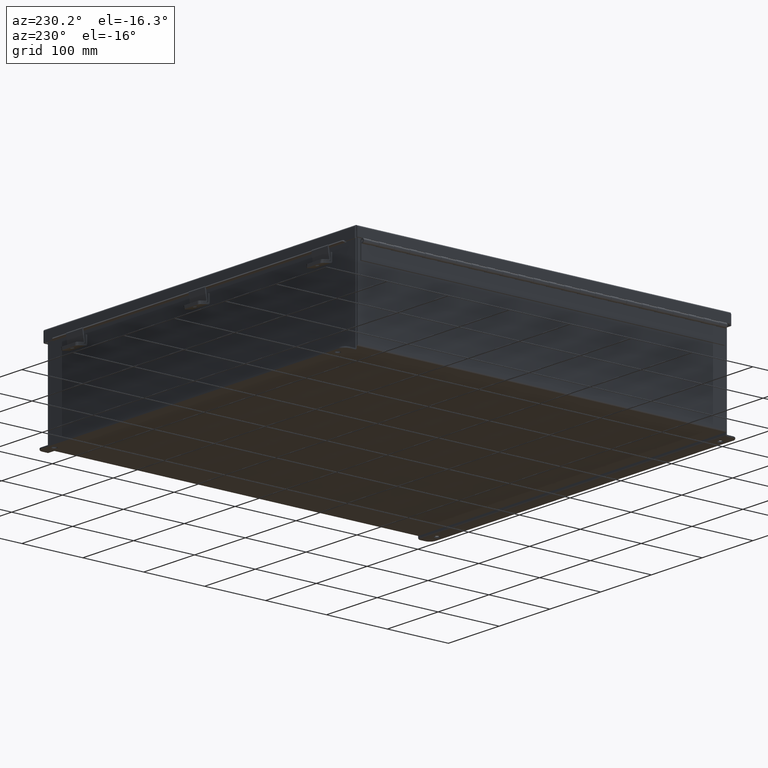
[diagram: clean part render]
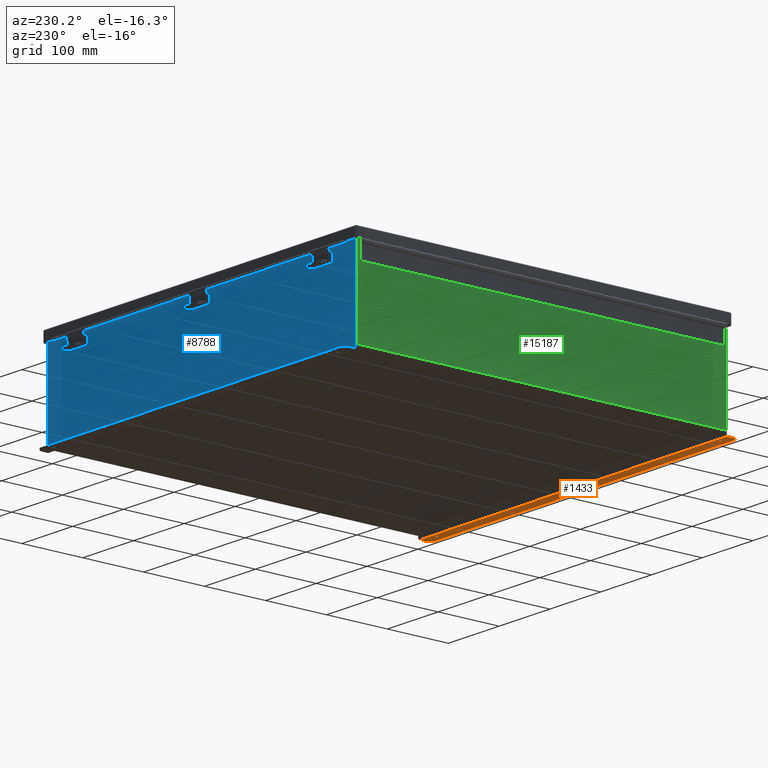
[diagram: same view with three faces highlighted in distinct colors, each labeled with its STEP entity id]
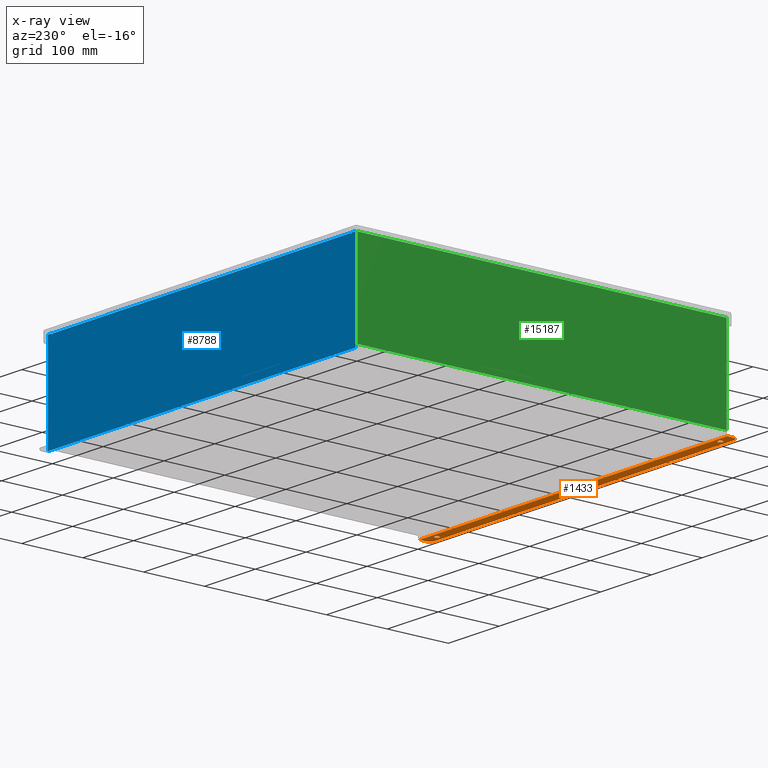
[diagram: x-ray of the same camera — body ghosted, the three highlighted faces saturated]
A machine part, auxiliary view with three faces highlighted in distinct colors.
The next image is the same camera in x-ray (body ghosted, the three faces saturated) — at least one of them is partly hidden behind the body in this view.
Their STEP definitions:

[orange] entity #1433 — the highlighted planar face has unit normal (0, -0, 1).
#329 = CARTESIAN_POINT ( 'NONE',  ( 11.92530000000000500, -1.092739197465705300E-014, -3.187000000000000700 ) ) ;
#614 = DIRECTION ( 'NONE',  ( 0.0000000000000000000, 1.000000000000000000, -3.502369222646490200E-015 ) ) ;
#694 = DIRECTION ( 'NONE',  ( 0.0000000000000000000, -3.362274453740631800E-015, -1.000000000000000000 ) ) ;
#876 = CARTESIAN_POINT ( 'NONE',  ( 10.98780000000002100, 0.3628000000000008400, -3.186999999999997600 ) ) ;
#1411 = PLANE ( 'NONE',  #11320 ) ;
#1433 = ADVANCED_FACE ( 'NONE', ( #18070, #17708, #18595 ), #1411, .F. ) ;
#1495 = DIRECTION ( 'NONE',  ( 0.0000000000000000000, 1.000000000000000000, -3.502369222646490200E-015 ) ) ;
#1524 = DIRECTION ( 'NONE',  ( 0.0000000000000000000, -3.362274453740631800E-015, -1.000000000000000000 ) ) ;
#1538 = CARTESIAN_POINT ( 'NONE',  ( -10.98779999999997700, 0.3627999999999986800, -3.187000000000001600 ) ) ;
#1717 = CARTESIAN_POINT ( 'NONE',  ( -11.55029999999997500, 0.7377999999999835800, -3.187000000000003400 ) ) ;
#2338 = ORIENTED_EDGE ( 'NONE', *, *, #23091, .T. ) ;
#2433 = VERTEX_POINT ( 'NONE', #18230 ) ;
#3713 = ORIENTED_EDGE ( 'NONE', *, *, #18006, .F. ) ;
#3762 = CIRCLE ( 'NONE', #16428, 0.3750000000000000600 ) ;
#4176 = CARTESIAN_POINT ( 'NONE',  ( 0.0000000000000000000, -1.092739197465705300E-014, -3.187000000000000700 ) ) ;
#4671 = VECTOR ( 'NONE', #7156, 39.37007874015748100 ) ;
#4741 = LINE ( 'NONE', #7561, #4671 ) ;
#5913 = CARTESIAN_POINT ( 'NONE',  ( -10.98779999999999300, 0.2067999999999986000, -3.187000000000001200 ) ) ;
#6641 = DIRECTION ( 'NONE',  ( 0.0000000000000000000, 1.000000000000000000, -3.502369222646490200E-015 ) ) ;
#6721 = DIRECTION ( 'NONE',  ( 0.0000000000000000000, -3.362274453740631800E-015, -1.000000000000000000 ) ) ;
#6855 = CARTESIAN_POINT ( 'NONE',  ( -10.98779999999997700, 0.3627999999999986800, -3.187000000000001600 ) ) ;
#6963 = CIRCLE ( 'NONE', #19818, 0.1560000000000000600 ) ;
#7019 = CARTESIAN_POINT ( 'NONE',  ( -11.92529999999998000, 0.3627999999999964600, -3.187000000000001600 ) ) ;
#7156 = DIRECTION ( 'NONE',  ( 1.000000000000000000, 2.290800226127906500E-017, -0.0000000000000000000 ) ) ;
#7295 = DIRECTION ( 'NONE',  ( 0.0000000000000000000, 3.702694488566362300E-015, 1.000000000000000000 ) ) ;
#7561 = CARTESIAN_POINT ( 'NONE',  ( 11.92530000000000500, 0.01300000000000229300, -3.187000000000000700 ) ) ;
#7618 = ORIENTED_EDGE ( 'NONE', *, *, #18383, .T. ) ;
#7990 = VECTOR ( 'NONE', #23915, 39.37007874015748100 ) ;
#8241 = LINE ( 'NONE', #23781, #7990 ) ;
#8298 = CIRCLE ( 'NONE', #12769, 0.1560000000000000600 ) ;
#8580 = CIRCLE ( 'NONE', #17571, 0.3750000000000000600 ) ;
#8935 = EDGE_CURVE ( 'NONE', #15753, #2433, #8580, .T. ) ;
#9499 = EDGE_CURVE ( 'NONE', #23621, #10896, #8298, .T. ) ;
#9504 = VERTEX_POINT ( 'NONE', #7019 ) ;
#10164 = CARTESIAN_POINT ( 'NONE',  ( 10.98780000000000500, 0.2068000000000007900, -3.186999999999996700 ) ) ;
#10241 = VERTEX_POINT ( 'NONE', #11984 ) ;
#10562 = VERTEX_POINT ( 'NONE', #1717 ) ;
#10896 = VERTEX_POINT ( 'NONE', #14420 ) ;
#11039 = EDGE_CURVE ( 'NONE', #11975, #10241, #4741, .T. ) ;
#11320 = AXIS2_PLACEMENT_3D ( 'NONE', #4176, #7295, #18256 ) ;
#11568 = CIRCLE ( 'NONE', #21052, 0.1560000000000000600 ) ;
#11786 = DIRECTION ( 'NONE',  ( 0.0000000000000000000, -1.000000000000000000, 4.370956789862820400E-015 ) ) ;
#11819 = DIRECTION ( 'NONE',  ( -0.0000000000000000000, -3.702694488566362300E-015, -1.000000000000000000 ) ) ;
#11838 = CARTESIAN_POINT ( 'NONE',  ( -11.55029999999997500, 0.3627999999999964600, -3.186999999999997600 ) ) ;
#11975 = VERTEX_POINT ( 'NONE', #23543 ) ;
#11984 = CARTESIAN_POINT ( 'NONE',  ( 11.92530000000000500, 0.01300000000000229300, -3.187000000000000700 ) ) ;
#12663 = ORIENTED_EDGE ( 'NONE', *, *, #16367, .T. ) ;
#12671 = AXIS2_PLACEMENT_3D ( 'NONE', #876, #694, #614 ) ;
#12769 = AXIS2_PLACEMENT_3D ( 'NONE', #6855, #6721, #6641 ) ;
#13143 = EDGE_CURVE ( 'NONE', #15511, #14609, #16650, .T. ) ;
#13783 = EDGE_LOOP ( 'NONE', ( #3713, #19019 ) ) ;
#14379 = ORIENTED_EDGE ( 'NONE', *, *, #22490, .F. ) ;
#14420 = CARTESIAN_POINT ( 'NONE',  ( -10.98779999999997700, 0.5187999999999987100, -3.187000000000002500 ) ) ;
#14609 = VERTEX_POINT ( 'NONE', #22439 ) ;
#14842 = ORIENTED_EDGE ( 'NONE', *, *, #11039, .F. ) ;
#15511 = VERTEX_POINT ( 'NONE', #10164 ) ;
#15562 = EDGE_LOOP ( 'NONE', ( #14379, #18572 ) ) ;
#15654 = CARTESIAN_POINT ( 'NONE',  ( 11.55030000000002300, 0.7378000000000011200, -3.186999999999998900 ) ) ;
#15753 = VERTEX_POINT ( 'NONE', #15654 ) ;
#16367 = EDGE_CURVE ( 'NONE', #10562, #15753, #23175, .T. ) ;
#16428 = AXIS2_PLACEMENT_3D ( 'NONE', #11838, #11819, #11786 ) ;
#16650 = CIRCLE ( 'NONE', #12671, 0.1560000000000000600 ) ;
#17571 = AXIS2_PLACEMENT_3D ( 'NONE', #24035, #23947, #23918 ) ;
#17708 = FACE_BOUND ( 'NONE', #15562, .T. ) ;
#17758 = DIRECTION ( 'NONE',  ( 0.0000000000000000000, 1.000000000000000000, -3.502369222646490200E-015 ) ) ;
#17777 = DIRECTION ( 'NONE',  ( 0.0000000000000000000, -3.362274453740631800E-015, -1.000000000000000000 ) ) ;
#17830 = CARTESIAN_POINT ( 'NONE',  ( 10.98780000000002100, 0.3628000000000008400, -3.186999999999997600 ) ) ;
#18006 = EDGE_CURVE ( 'NONE', #10896, #23621, #11568, .T. ) ;
#18070 = FACE_BOUND ( 'NONE', #13783, .T. ) ;
#18230 = CARTESIAN_POINT ( 'NONE',  ( 11.92530000000002300, 0.3628000000000008400, -3.186999999999997600 ) ) ;
#18256 = DIRECTION ( 'NONE',  ( -4.919856193148104900E-031, -1.000000000000000000, 3.702694488566362300E-015 ) ) ;
#18383 = EDGE_CURVE ( 'NONE', #11975, #9504, #8241, .T. ) ;
#18572 = ORIENTED_EDGE ( 'NONE', *, *, #13143, .F. ) ;
#18595 = FACE_OUTER_BOUND ( 'NONE', #21959, .T. ) ;
#19019 = ORIENTED_EDGE ( 'NONE', *, *, #9499, .F. ) ;
#19818 = AXIS2_PLACEMENT_3D ( 'NONE', #17830, #17777, #17758 ) ;
#20051 = ORIENTED_EDGE ( 'NONE', *, *, #24068, .T. ) ;
#20378 = DIRECTION ( 'NONE',  ( 1.000000000000000000, 4.910036603141682400E-031, 0.0000000000000000000 ) ) ;
#21052 = AXIS2_PLACEMENT_3D ( 'NONE', #1538, #1524, #1495 ) ;
#21705 = ORIENTED_EDGE ( 'NONE', *, *, #8935, .T. ) ;
#21959 = EDGE_LOOP ( 'NONE', ( #7618, #2338, #12663, #21705, #20051, #14842 ) ) ;
#22439 = CARTESIAN_POINT ( 'NONE',  ( 10.98780000000002100, 0.5188000000000009300, -3.186999999999998100 ) ) ;
#22490 = EDGE_CURVE ( 'NONE', #14609, #15511, #6963, .T. ) ;
#22881 = VECTOR ( 'NONE', #24717, 39.37007874015748100 ) ;
#22968 = LINE ( 'NONE', #329, #22881 ) ;
#23091 = EDGE_CURVE ( 'NONE', #9504, #10562, #3762, .T. ) ;
#23114 = CARTESIAN_POINT ( 'NONE',  ( -2.035385365534024800E-024, 0.7377999999999989000, -3.186999999999998900 ) ) ;
#23175 = LINE ( 'NONE', #23114, #23599 ) ;
#23543 = CARTESIAN_POINT ( 'NONE',  ( -11.92529999999999500, 0.01299999999998262300, -3.186999999999996300 ) ) ;
#23599 = VECTOR ( 'NONE', #20378, 39.37007874015748100 ) ;
#23621 = VERTEX_POINT ( 'NONE', #5913 ) ;
#23781 = CARTESIAN_POINT ( 'NONE',  ( -11.92529999999999800, -2.841121913410833900E-014, -3.186999999999996300 ) ) ;
#23915 = DIRECTION ( 'NONE',  ( 4.919856193148104900E-031, 1.000000000000000000, -3.702694488566362300E-015 ) ) ;
#23918 = DIRECTION ( 'NONE',  ( 0.0000000000000000000, -1.000000000000000000, 4.370956789862820400E-015 ) ) ;
#23947 = DIRECTION ( 'NONE',  ( -0.0000000000000000000, -3.702694488566362300E-015, -1.000000000000000000 ) ) ;
#24035 = CARTESIAN_POINT ( 'NONE',  ( 11.55030000000002300, 0.3628000000000008400, -3.187000000000001600 ) ) ;
#24068 = EDGE_CURVE ( 'NONE', #2433, #10241, #22968, .T. ) ;
#24717 = DIRECTION ( 'NONE',  ( -4.919856193148104900E-031, -1.000000000000000000, 3.702694488566362300E-015 ) ) ;

[blue] entity #8788 — the highlighted planar face has unit normal (0, -1, 0).
#74 = VECTOR ( 'NONE', #23560, 39.37007874015748100 ) ;
#124 = EDGE_CURVE ( 'NONE', #20801, #18044, #18876, .T. ) ;
#277 = VERTEX_POINT ( 'NONE', #2313 ) ;
#632 = ORIENTED_EDGE ( 'NONE', *, *, #13697, .F. ) ;
#638 = DIRECTION ( 'NONE',  ( 0.0000000000000000000, 0.0000000000000000000, -1.000000000000000000 ) ) ;
#654 = CARTESIAN_POINT ( 'NONE',  ( 11.58230000000000400, 0.0000000000000000000, 2.912299999999998300 ) ) ;
#707 = ORIENTED_EDGE ( 'NONE', *, *, #20255, .T. ) ;
#751 = CARTESIAN_POINT ( 'NONE',  ( -11.61965000000000200, 0.0000000000000000000, 0.0000000000000000000 ) ) ;
#969 = VECTOR ( 'NONE', #7866, 39.37007874015748100 ) ;
#1040 = LINE ( 'NONE', #7900, #969 ) ;
#1263 = AXIS2_PLACEMENT_3D ( 'NONE', #1752, #14316, #13060 ) ;
#1326 = LINE ( 'NONE', #24457, #74 ) ;
#1389 = DIRECTION ( 'NONE',  ( -4.340572780399816900E-014, 0.0000000000000000000, -1.000000000000000000 ) ) ;
#1395 = DIRECTION ( 'NONE',  ( -0.0000000000000000000, 1.000000000000000000, -0.0000000000000000000 ) ) ;
#1750 = EDGE_CURVE ( 'NONE', #277, #18231, #10535, .T. ) ;
#1752 = CARTESIAN_POINT ( 'NONE',  ( -11.60097500000000200, 0.0000000000000000000, 2.874949999999997000 ) ) ;
#1770 = VERTEX_POINT ( 'NONE', #9350 ) ;
#1841 = ORIENTED_EDGE ( 'NONE', *, *, #10644, .F. ) ;
#2313 = CARTESIAN_POINT ( 'NONE',  ( -11.58230000000000400, 0.0000000000000000000, 2.874949999999997000 ) ) ;
#2477 = CARTESIAN_POINT ( 'NONE',  ( 11.61965000000000200, 0.0000000000000000000, 2.925300000000000500 ) ) ;
#3434 = ORIENTED_EDGE ( 'NONE', *, *, #11358, .F. ) ;
#3674 = ORIENTED_EDGE ( 'NONE', *, *, #21674, .F. ) ;
#3754 = VERTEX_POINT ( 'NONE', #12618 ) ;
#3823 = EDGE_CURVE ( 'NONE', #8797, #5448, #17743, .T. ) ;
#4223 = CARTESIAN_POINT ( 'NONE',  ( -11.58230000000000400, 4.370956789862821100E-015, 2.912299999999998300 ) ) ;
#4879 = CARTESIAN_POINT ( 'NONE',  ( 11.92530000000000000, 0.0000000000000000000, 2.925300000000000500 ) ) ;
#5174 = EDGE_CURVE ( 'NONE', #3754, #19330, #8409, .T. ) ;
#5423 = DIRECTION ( 'NONE',  ( 0.0000000000000000000, 0.0000000000000000000, -1.000000000000000000 ) ) ;
#5448 = VERTEX_POINT ( 'NONE', #8015 ) ;
#6067 = CARTESIAN_POINT ( 'NONE',  ( 11.61965000000000200, 0.0000000000000000000, 2.874949999999997000 ) ) ;
#6229 = CARTESIAN_POINT ( 'NONE',  ( -11.61965000000000200, 0.0000000000000000000, 2.925300000000000500 ) ) ;
#6384 = DIRECTION ( 'NONE',  ( 0.0000000000000000000, 0.0000000000000000000, 1.000000000000000000 ) ) ;
#6459 = CARTESIAN_POINT ( 'NONE',  ( 11.58230000000000400, 0.0000000000000000000, 0.0000000000000000000 ) ) ;
#6515 = DIRECTION ( 'NONE',  ( 0.0000000000000000000, -0.0000000000000000000, -1.000000000000000000 ) ) ;
#6551 = DIRECTION ( 'NONE',  ( 0.0000000000000000000, -1.000000000000000000, 0.0000000000000000000 ) ) ;
#6570 = ORIENTED_EDGE ( 'NONE', *, *, #5174, .T. ) ;
#6799 = CARTESIAN_POINT ( 'NONE',  ( 0.0000000000000000000, 0.0000000000000000000, 0.0000000000000000000 ) ) ;
#6919 = CARTESIAN_POINT ( 'NONE',  ( 11.61964999999987700, 0.0000000000000000000, -5.042991396304229400E-013 ) ) ;
#6972 = VERTEX_POINT ( 'NONE', #20038 ) ;
#7049 = EDGE_CURVE ( 'NONE', #6972, #12324, #21804, .T. ) ;
#7639 = AXIS2_PLACEMENT_3D ( 'NONE', #21460, #1395, #5423 ) ;
#7654 = PLANE ( 'NONE',  #11131 ) ;
#7855 = VECTOR ( 'NONE', #638, 39.37007874015748100 ) ;
#7866 = DIRECTION ( 'NONE',  ( 1.000000000000000000, 0.0000000000000000000, 0.0000000000000000000 ) ) ;
#7900 = CARTESIAN_POINT ( 'NONE',  ( -11.92530000000000000, 0.0000000000000000000, 2.925300000000000500 ) ) ;
#8015 = CARTESIAN_POINT ( 'NONE',  ( 11.58230000000000400, 0.0000000000000000000, 2.874949999999997000 ) ) ;
#8369 = DIRECTION ( 'NONE',  ( 1.000000000000000000, 0.0000000000000000000, 0.0000000000000000000 ) ) ;
#8409 = LINE ( 'NONE', #4879, #7855 ) ;
#8788 = ADVANCED_FACE ( 'NONE', ( #19047 ), #7654, .F. ) ;
#8797 = VERTEX_POINT ( 'NONE', #6067 ) ;
#9350 = CARTESIAN_POINT ( 'NONE',  ( -11.92529999999999800, 0.0000000000000000000, -3.099299999999999900 ) ) ;
#9433 = ORIENTED_EDGE ( 'NONE', *, *, #23444, .T. ) ;
#9725 = ORIENTED_EDGE ( 'NONE', *, *, #1750, .F. ) ;
#10535 = CIRCLE ( 'NONE', #1263, 0.01867499999999949400 ) ;
#10644 = EDGE_CURVE ( 'NONE', #13140, #8797, #11060, .T. ) ;
#10736 = VECTOR ( 'NONE', #1389, 39.37007874015748100 ) ;
#11060 = LINE ( 'NONE', #6919, #10736 ) ;
#11131 = AXIS2_PLACEMENT_3D ( 'NONE', #6799, #6551, #6515 ) ;
#11233 = CARTESIAN_POINT ( 'NONE',  ( -11.61965000000000200, 0.0000000000000000000, 2.874949999999997000 ) ) ;
#11358 = EDGE_CURVE ( 'NONE', #20801, #277, #1326, .T. ) ;
#11380 = CARTESIAN_POINT ( 'NONE',  ( -11.92530000000000000, 0.0000000000000000000, -3.099299999999999900 ) ) ;
#11463 = DIRECTION ( 'NONE',  ( 1.000000000000000000, -0.0000000000000000000, -0.0000000000000000000 ) ) ;
#11514 = LINE ( 'NONE', #751, #11535 ) ;
#11535 = VECTOR ( 'NONE', #24929, 39.37007874015748100 ) ;
#12324 = VERTEX_POINT ( 'NONE', #6229 ) ;
#12618 = CARTESIAN_POINT ( 'NONE',  ( 11.92530000000000000, 0.0000000000000000000, 2.925300000000000500 ) ) ;
#13060 = DIRECTION ( 'NONE',  ( 0.0000000000000000000, 0.0000000000000000000, -1.000000000000000000 ) ) ;
#13140 = VERTEX_POINT ( 'NONE', #2477 ) ;
#13165 = CARTESIAN_POINT ( 'NONE',  ( -11.58230000000000400, 4.370956789862821100E-015, 2.912299999999998300 ) ) ;
#13522 = ORIENTED_EDGE ( 'NONE', *, *, #16488, .F. ) ;
#13538 = VECTOR ( 'NONE', #6384, 39.37007874015748100 ) ;
#13621 = CARTESIAN_POINT ( 'NONE',  ( -11.92530000000000000, 0.0000000000000000000, 2.925300000000000500 ) ) ;
#13697 = EDGE_CURVE ( 'NONE', #5448, #18044, #13721, .T. ) ;
#13721 = LINE ( 'NONE', #6459, #13538 ) ;
#14316 = DIRECTION ( 'NONE',  ( -0.0000000000000000000, 1.000000000000000000, -0.0000000000000000000 ) ) ;
#14495 = DIRECTION ( 'NONE',  ( -0.0000000000000000000, -0.0000000000000000000, 1.000000000000000000 ) ) ;
#15184 = DIRECTION ( 'NONE',  ( 1.000000000000000000, 0.0000000000000000000, 0.0000000000000000000 ) ) ;
#16488 = EDGE_CURVE ( 'NONE', #1770, #19330, #22366, .T. ) ;
#16574 = ORIENTED_EDGE ( 'NONE', *, *, #124, .T. ) ;
#17743 = CIRCLE ( 'NONE', #7639, 0.01867499999999949400 ) ;
#18044 = VERTEX_POINT ( 'NONE', #654 ) ;
#18231 = VERTEX_POINT ( 'NONE', #11233 ) ;
#18277 = VECTOR ( 'NONE', #8369, 39.37007874015748100 ) ;
#18876 = LINE ( 'NONE', #4223, #18277 ) ;
#19047 = FACE_OUTER_BOUND ( 'NONE', #20522, .T. ) ;
#19330 = VERTEX_POINT ( 'NONE', #22237 ) ;
#20038 = CARTESIAN_POINT ( 'NONE',  ( -11.92530000000000000, 0.0000000000000000000, 2.925300000000000500 ) ) ;
#20154 = ORIENTED_EDGE ( 'NONE', *, *, #3823, .F. ) ;
#20229 = CARTESIAN_POINT ( 'NONE',  ( -11.92530000000000000, 0.0000000000000000000, 2.925300000000000500 ) ) ;
#20255 = EDGE_CURVE ( 'NONE', #1770, #6972, #21135, .T. ) ;
#20522 = EDGE_LOOP ( 'NONE', ( #3674, #9725, #3434, #16574, #632, #20154, #1841, #9433, #6570, #13522, #707, #21221 ) ) ;
#20801 = VERTEX_POINT ( 'NONE', #13165 ) ;
#21117 = VECTOR ( 'NONE', #14495, 39.37007874015748100 ) ;
#21135 = LINE ( 'NONE', #13621, #21117 ) ;
#21221 = ORIENTED_EDGE ( 'NONE', *, *, #7049, .T. ) ;
#21460 = CARTESIAN_POINT ( 'NONE',  ( 11.60097500000000200, 0.0000000000000000000, 2.874949999999997000 ) ) ;
#21511 = VECTOR ( 'NONE', #15184, 39.37007874015748100 ) ;
#21674 = EDGE_CURVE ( 'NONE', #18231, #12324, #11514, .T. ) ;
#21804 = LINE ( 'NONE', #20229, #21511 ) ;
#22237 = CARTESIAN_POINT ( 'NONE',  ( 11.92530000000000000, 0.0000000000000000000, -3.099299999999999900 ) ) ;
#22366 = LINE ( 'NONE', #11380, #22654 ) ;
#22654 = VECTOR ( 'NONE', #11463, 39.37007874015748100 ) ;
#23444 = EDGE_CURVE ( 'NONE', #13140, #3754, #1040, .T. ) ;
#23560 = DIRECTION ( 'NONE',  ( 0.0000000000000000000, 0.0000000000000000000, -1.000000000000000000 ) ) ;
#24457 = CARTESIAN_POINT ( 'NONE',  ( -11.58230000000000400, 0.0000000000000000000, 0.0000000000000000000 ) ) ;
#24929 = DIRECTION ( 'NONE',  ( 0.0000000000000000000, 0.0000000000000000000, 1.000000000000000000 ) ) ;

[green] entity #15187 — the highlighted planar face has unit normal (1, 0, 0).
#1587 = VERTEX_POINT ( 'NONE', #12534 ) ;
#2457 = DIRECTION ( 'NONE',  ( 3.361929640444176300E-015, 0.0000000000000000000, -1.000000000000000000 ) ) ;
#2483 = DIRECTION ( 'NONE',  ( 3.361929640444175900E-015, 0.0000000000000000000, -1.000000000000000000 ) ) ;
#2843 = PLANE ( 'NONE',  #8283 ) ;
#3189 = CARTESIAN_POINT ( 'NONE',  ( -12.00000000000000200, 0.0000000000000000000, -4.060209080583511000E-014 ) ) ;
#5398 = FACE_OUTER_BOUND ( 'NONE', #10604, .T. ) ;
#6243 = EDGE_CURVE ( 'NONE', #7168, #23094, #24229, .T. ) ;
#7168 = VERTEX_POINT ( 'NONE', #7200 ) ;
#7200 = CARTESIAN_POINT ( 'NONE',  ( -12.00000000000002100, 11.92530000000000000, 5.837599999999999200 ) ) ;
#7540 = CARTESIAN_POINT ( 'NONE',  ( -12.00000000000002100, -11.92529999999999800, 5.837599999999999200 ) ) ;
#7730 = LINE ( 'NONE', #9975, #7781 ) ;
#7781 = VECTOR ( 'NONE', #9886, 39.37007874015748100 ) ;
#8271 = ORIENTED_EDGE ( 'NONE', *, *, #9442, .T. ) ;
#8283 = AXIS2_PLACEMENT_3D ( 'NONE', #3189, #15944, #2483 ) ;
#8532 = DIRECTION ( 'NONE',  ( -3.361929640444176300E-015, 3.735477378271307500E-016, 1.000000000000000000 ) ) ;
#8583 = CARTESIAN_POINT ( 'NONE',  ( -12.00000000000000200, -11.92530000000000000, -3.614576376617028200E-014 ) ) ;
#9442 = EDGE_CURVE ( 'NONE', #1587, #18306, #10724, .T. ) ;
#9886 = DIRECTION ( 'NONE',  ( -0.0000000000000000000, 1.000000000000000000, -0.0000000000000000000 ) ) ;
#9975 = CARTESIAN_POINT ( 'NONE',  ( -12.00000000000000200, 11.92530000000000000, 0.01299999999999985900 ) ) ;
#10604 = EDGE_LOOP ( 'NONE', ( #17555, #12633, #24129, #8271 ) ) ;
#10724 = LINE ( 'NONE', #8583, #11342 ) ;
#11342 = VECTOR ( 'NONE', #8532, 39.37007874015748100 ) ;
#12140 = EDGE_CURVE ( 'NONE', #18306, #7168, #21929, .T. ) ;
#12142 = CARTESIAN_POINT ( 'NONE',  ( -12.00000000000000200, 11.92530000000000000, 0.01299999999999985900 ) ) ;
#12534 = CARTESIAN_POINT ( 'NONE',  ( -12.00000000000000200, -11.92529999999999800, 0.01299999999999985900 ) ) ;
#12633 = ORIENTED_EDGE ( 'NONE', *, *, #6243, .T. ) ;
#14143 = CARTESIAN_POINT ( 'NONE',  ( -12.00000000000000200, 11.92530000000000000, -4.060209080583511000E-014 ) ) ;
#14752 = EDGE_CURVE ( 'NONE', #1587, #23094, #7730, .T. ) ;
#15187 = ADVANCED_FACE ( 'NONE', ( #5398 ), #2843, .F. ) ;
#15944 = DIRECTION ( 'NONE',  ( 1.000000000000000000, 0.0000000000000000000, 3.361929640444175900E-015 ) ) ;
#16339 = DIRECTION ( 'NONE',  ( 0.0000000000000000000, 1.000000000000000000, 0.0000000000000000000 ) ) ;
#16414 = CARTESIAN_POINT ( 'NONE',  ( -12.00000000000002100, -11.92530000000000000, 5.837599999999999200 ) ) ;
#17555 = ORIENTED_EDGE ( 'NONE', *, *, #12140, .T. ) ;
#18306 = VERTEX_POINT ( 'NONE', #7540 ) ;
#20881 = VECTOR ( 'NONE', #2457, 39.37007874015748100 ) ;
#21798 = VECTOR ( 'NONE', #16339, 39.37007874015748100 ) ;
#21929 = LINE ( 'NONE', #16414, #21798 ) ;
#23094 = VERTEX_POINT ( 'NONE', #12142 ) ;
#24129 = ORIENTED_EDGE ( 'NONE', *, *, #14752, .F. ) ;
#24229 = LINE ( 'NONE', #14143, #20881 ) ;